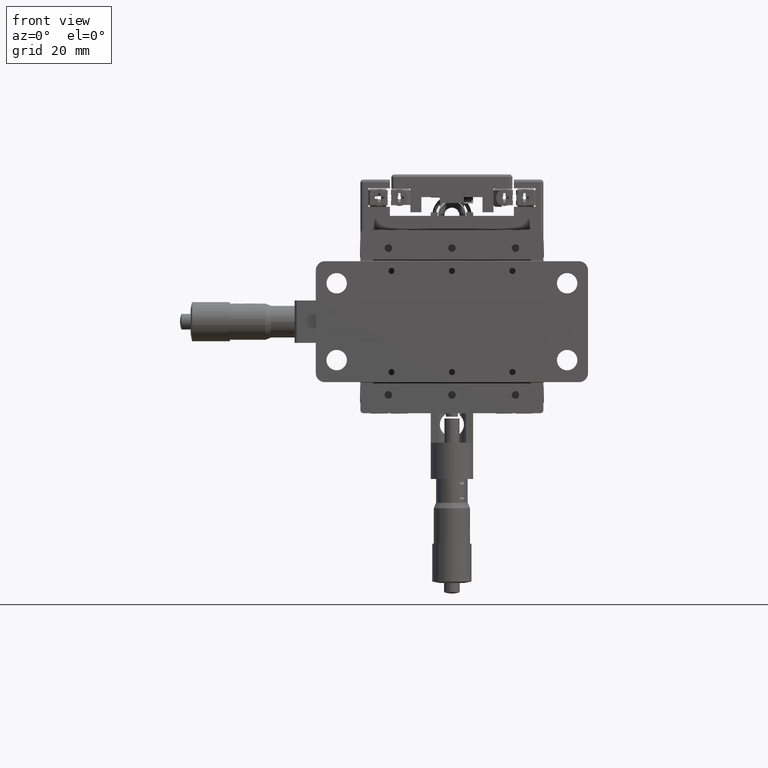
[diagram: clean part render]
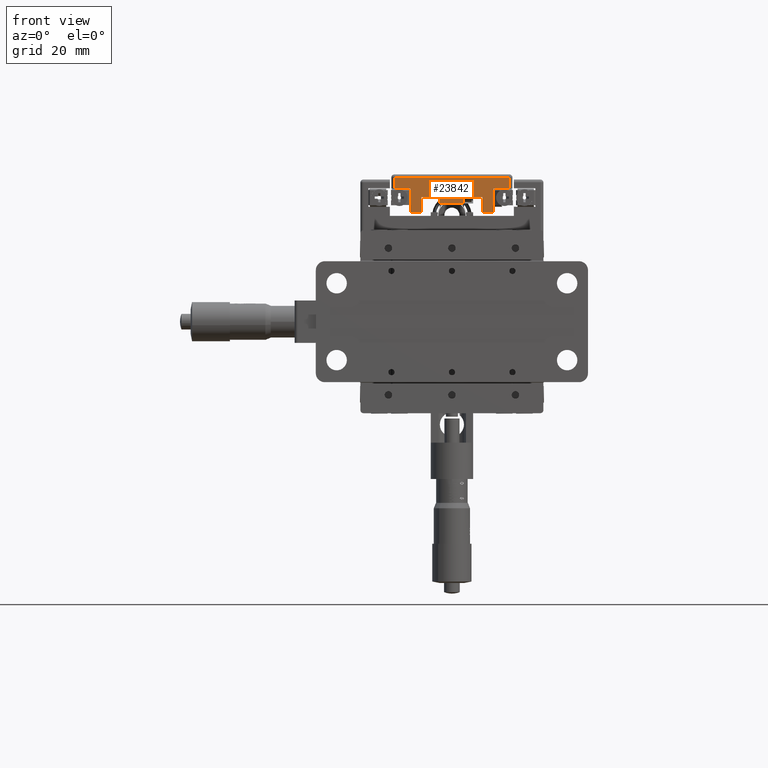
[diagram: same view with one face highlighted and labeled with its STEP entity id]
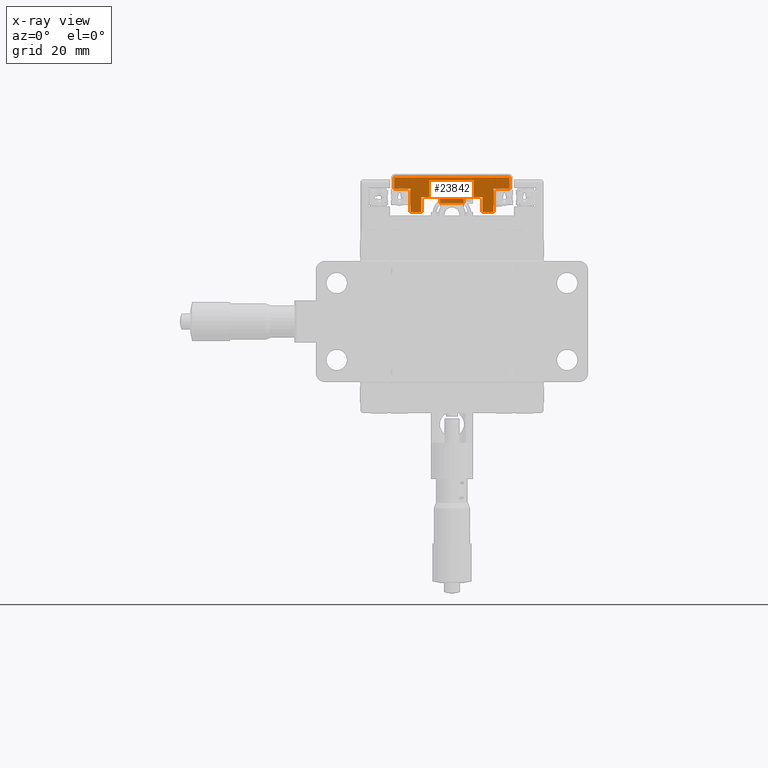
[diagram: x-ray of the same camera — body ghosted, the highlighted face saturated]
A machine part, front view. The second image highlights one B-rep face of the part: STEP entity #23842.
The next image is the same camera in x-ray: the body ghosted, the highlighted face saturated — about 0% of this face is hidden behind the body in this view.
In plain terms, the highlighted planar face has unit normal (-0, 1, -0).
Its self-contained STEP definition (entity closure, byte-faithful):
#304 = ORIENTED_EDGE ( 'NONE', *, *, #8910, .T. ) ;
#3503 = VERTEX_POINT ( 'NONE', #59172 ) ;
#3655 = EDGE_CURVE ( 'NONE', #60908, #56716, #82521, .T. ) ;
#4501 = CARTESIAN_POINT ( 'NONE',  ( -13.74999999999966100, 25.04999999999874700, 36.20000000000024400 ) ) ;
#4627 = CARTESIAN_POINT ( 'NONE',  ( -18.99999999999954200, 25.04999999999875400, 47.70000000000028700 ) ) ;
#4888 = CARTESIAN_POINT ( 'NONE',  ( -3.899999999999576300, 25.04999999999875400, 39.20000000000007400 ) ) ;
#5463 = DIRECTION ( 'NONE',  ( -1.000000000000000000, -3.783065374157278600E-018, 1.743811766388004100E-014 ) ) ;
#5639 = DIRECTION ( 'NONE',  ( 1.580125038398398000E-014, 3.453685575127654400E-016, 1.000000000000000000 ) ) ;
#5940 = CARTESIAN_POINT ( 'NONE',  ( 13.75000000000046000, 25.04999999999875400, 43.99999999999975800 ) ) ;
#5964 = DIRECTION ( 'NONE',  ( -1.743811766388004100E-014, -3.453685575127654400E-016, -1.000000000000000000 ) ) ;
#7181 = VERTEX_POINT ( 'NONE', #4501 ) ;
#7932 = EDGE_CURVE ( 'NONE', #14029, #47693, #84960, .T. ) ;
#8684 = CARTESIAN_POINT ( 'NONE',  ( 10.10000000000038700, 25.04999999999875400, 41.19999999999983200 ) ) ;
#8799 = VECTOR ( 'NONE', #25783, 1000.000000000000000 ) ;
#8910 = EDGE_CURVE ( 'NONE', #3503, #14029, #38335, .T. ) ;
#9645 = ORIENTED_EDGE ( 'NONE', *, *, #46413, .F. ) ;
#10597 = DIRECTION ( 'NONE',  ( -1.327478132153570400E-014, -3.453685575127654400E-016, -1.000000000000000000 ) ) ;
#10727 = CARTESIAN_POINT ( 'NONE',  ( -18.99999999999954200, 25.04999999999875400, 47.70000000000028700 ) ) ;
#11501 = VECTOR ( 'NONE', #10597, 1000.000000000000000 ) ;
#11594 = DIRECTION ( 'NONE',  ( 1.000000000000000000, 3.783065374157997400E-018, -1.535644949270787300E-014 ) ) ;
#11836 = EDGE_CURVE ( 'NONE', #20392, #49449, #39807, .T. ) ;
#12045 = ORIENTED_EDGE ( 'NONE', *, *, #7932, .T. ) ;
#12286 = EDGE_LOOP ( 'NONE', ( #45992, #65206, #44466, #81673, #53228, #9645, #84640, #52086, #64033, #78487, #69338, #68144, #78361, #40236, #304, #12045 ) ) ;
#12859 = VECTOR ( 'NONE', #63252, 1000.000000000000000 ) ;
#12892 = DIRECTION ( 'NONE',  ( -1.000000000000000000, -3.783065374157902600E-018, 1.563400524886416200E-014 ) ) ;
#14029 = VERTEX_POINT ( 'NONE', #47672 ) ;
#14968 = LINE ( 'NONE', #34413, #31159 ) ;
#15503 = VECTOR ( 'NONE', #12892, 1000.000000000000000 ) ;
#15627 = VECTOR ( 'NONE', #38258, 1000.000000000000000 ) ;
#15670 = DIRECTION ( 'NONE',  ( -1.743811766388004100E-014, -3.453685575127654400E-016, -1.000000000000000000 ) ) ;
#18249 = PLANE ( 'NONE',  #43898 ) ;
#18301 = DIRECTION ( 'NONE',  ( -1.000000000000000000, -3.783065374157321000E-018, 1.731500825590749900E-014 ) ) ;
#18424 = VERTEX_POINT ( 'NONE', #82718 ) ;
#18532 = VECTOR ( 'NONE', #85608, 1000.000000000000000 ) ;
#20367 = CARTESIAN_POINT ( 'NONE',  ( -18.99999999999954200, 25.04999999999875400, 47.70000000000028700 ) ) ;
#20392 = VERTEX_POINT ( 'NONE', #76294 ) ;
#20480 = DIRECTION ( 'NONE',  ( -1.000000000000000000, -3.783065374157278600E-018, 1.743811766388004100E-014 ) ) ;
#20676 = LINE ( 'NONE', #10727, #18532 ) ;
#20935 = VERTEX_POINT ( 'NONE', #22392 ) ;
#22392 = CARTESIAN_POINT ( 'NONE',  ( 13.75000000000033900, 25.04999999999874700, 36.19999999999976800 ) ) ;
#23842 = ADVANCED_FACE ( 'NONE', ( #32240 ), #18249, .F. ) ;
#25783 = DIRECTION ( 'NONE',  ( -1.535644949270787300E-014, -3.453685575127654400E-016, -1.000000000000000000 ) ) ;
#26019 = CARTESIAN_POINT ( 'NONE',  ( 3.900000000000359600, 25.04999999999875400, 39.19999999999993900 ) ) ;
#26662 = CARTESIAN_POINT ( 'NONE',  ( -10.09999999999961800, 25.04999999999874700, 36.20000000000014500 ) ) ;
#26863 = EDGE_CURVE ( 'NONE', #62402, #75694, #33784, .T. ) ;
#28175 = CARTESIAN_POINT ( 'NONE',  ( 19.00000000000051500, 25.04999999999875400, 47.69999999999966900 ) ) ;
#28547 = LINE ( 'NONE', #4888, #61020 ) ;
#29162 = EDGE_CURVE ( 'NONE', #49449, #62402, #20676, .T. ) ;
#29363 = LINE ( 'NONE', #53775, #47706 ) ;
#29894 = DIRECTION ( 'NONE',  ( 1.000000000000000000, 3.783065374158673800E-018, -1.339789072950824700E-014 ) ) ;
#31159 = VECTOR ( 'NONE', #41280, 1000.000000000000000 ) ;
#31333 = CARTESIAN_POINT ( 'NONE',  ( -10.09999999999955000, 25.04999999999875400, 41.20000000000013800 ) ) ;
#31609 = VECTOR ( 'NONE', #58635, 1000.000000000000000 ) ;
#31720 = VECTOR ( 'NONE', #20480, 1000.000000000000000 ) ;
#32240 = FACE_OUTER_BOUND ( 'NONE', #12286, .T. ) ;
#32380 = DIRECTION ( 'NONE',  ( 1.000000000000000000, 3.783065374157278600E-018, -1.743811766388004100E-014 ) ) ;
#32416 = LINE ( 'NONE', #88400, #67033 ) ;
#33419 = CARTESIAN_POINT ( 'NONE',  ( 3.900000000000397400, 25.04999999999875400, 41.19999999999993900 ) ) ;
#33784 = LINE ( 'NONE', #37736, #31609 ) ;
#34413 = CARTESIAN_POINT ( 'NONE',  ( -19.99999999999955200, 25.04999999999875400, 44.00000000000029100 ) ) ;
#35486 = EDGE_CURVE ( 'NONE', #64646, #75694, #14968, .T. ) ;
#37736 = CARTESIAN_POINT ( 'NONE',  ( -18.99999999999955200, 25.04999999999875400, 44.00000000000028400 ) ) ;
#37826 = CARTESIAN_POINT ( 'NONE',  ( 3.900000000000397400, 25.04999999999875400, 41.19999999999993900 ) ) ;
#37907 = EDGE_CURVE ( 'NONE', #20935, #66125, #50062, .T. ) ;
#38258 = DIRECTION ( 'NONE',  ( -1.327478132153570400E-014, -3.453685575127654400E-016, -1.000000000000000000 ) ) ;
#38335 = LINE ( 'NONE', #85164, #73026 ) ;
#39807 = LINE ( 'NONE', #28175, #12859 ) ;
#40236 = ORIENTED_EDGE ( 'NONE', *, *, #47278, .F. ) ;
#41241 = EDGE_CURVE ( 'NONE', #47693, #56716, #28547, .T. ) ;
#41280 = DIRECTION ( 'NONE',  ( -1.000000000000000000, -3.783065374157997400E-018, 1.535644949270787300E-014 ) ) ;
#41845 = CARTESIAN_POINT ( 'NONE',  ( -13.74999999999966100, 25.04999999999874700, 36.20000000000024400 ) ) ;
#43898 = AXIS2_PLACEMENT_3D ( 'NONE', #4627, #52924, #11594 ) ;
#44466 = ORIENTED_EDGE ( 'NONE', *, *, #56267, .F. ) ;
#45287 = VECTOR ( 'NONE', #18301, 1000.000000000000000 ) ;
#45470 = LINE ( 'NONE', #67211, #8799 ) ;
#45992 = ORIENTED_EDGE ( 'NONE', *, *, #41241, .T. ) ;
#46413 = EDGE_CURVE ( 'NONE', #18424, #20935, #45470, .T. ) ;
#47278 = EDGE_CURVE ( 'NONE', #3503, #74620, #89085, .T. ) ;
#47672 = CARTESIAN_POINT ( 'NONE',  ( -3.899999999999555400, 25.04999999999875400, 41.20000000000005300 ) ) ;
#47693 = VERTEX_POINT ( 'NONE', #65712 ) ;
#47706 = VECTOR ( 'NONE', #5463, 1000.000000000000000 ) ;
#48351 = EDGE_CURVE ( 'NONE', #74620, #7181, #29363, .T. ) ;
#48915 = EDGE_CURVE ( 'NONE', #7181, #64646, #32416, .T. ) ;
#49449 = VERTEX_POINT ( 'NONE', #74746 ) ;
#50062 = LINE ( 'NONE', #41845, #31720 ) ;
#51915 = CARTESIAN_POINT ( 'NONE',  ( -3.899999999999562000, 25.04999999999875400, 41.20000000000005300 ) ) ;
#52086 = ORIENTED_EDGE ( 'NONE', *, *, #11836, .T. ) ;
#52924 = DIRECTION ( 'NONE',  ( -3.783065374161595800E-018, 1.000000000000000000, -2.343462550502514100E-016 ) ) ;
#53228 = ORIENTED_EDGE ( 'NONE', *, *, #37907, .F. ) ;
#53480 = EDGE_CURVE ( 'NONE', #20392, #18424, #70662, .T. ) ;
#53775 = CARTESIAN_POINT ( 'NONE',  ( -13.74999999999966100, 25.04999999999874700, 36.20000000000024400 ) ) ;
#56267 = EDGE_CURVE ( 'NONE', #79788, #60908, #63722, .T. ) ;
#56582 = CARTESIAN_POINT ( 'NONE',  ( 10.10000000000039200, 25.04999999999875400, 41.19999999999983200 ) ) ;
#56716 = VERTEX_POINT ( 'NONE', #26019 ) ;
#58635 = DIRECTION ( 'NONE',  ( -3.166500742600624700E-015, -3.453685575127653900E-016, -1.000000000000000000 ) ) ;
#59172 = CARTESIAN_POINT ( 'NONE',  ( -10.09999999999955000, 25.04999999999875400, 41.20000000000013800 ) ) ;
#59682 = CARTESIAN_POINT ( 'NONE',  ( 10.10000000000038700, 25.04999999999875400, 41.19999999999983200 ) ) ;
#60908 = VERTEX_POINT ( 'NONE', #37826 ) ;
#61020 = VECTOR ( 'NONE', #32380, 1000.000000000000000 ) ;
#62402 = VERTEX_POINT ( 'NONE', #20367 ) ;
#63252 = DIRECTION ( 'NONE',  ( 1.066800766574351900E-014, 3.453685575127654400E-016, 1.000000000000000000 ) ) ;
#63722 = LINE ( 'NONE', #59682, #45287 ) ;
#64033 = ORIENTED_EDGE ( 'NONE', *, *, #29162, .T. ) ;
#64171 = VECTOR ( 'NONE', #5964, 1000.000000000000000 ) ;
#64646 = VERTEX_POINT ( 'NONE', #78799 ) ;
#65206 = ORIENTED_EDGE ( 'NONE', *, *, #3655, .F. ) ;
#65712 = CARTESIAN_POINT ( 'NONE',  ( -3.899999999999588200, 25.04999999999875400, 39.20000000000007400 ) ) ;
#66125 = VERTEX_POINT ( 'NONE', #73603 ) ;
#67033 = VECTOR ( 'NONE', #5639, 1000.000000000000000 ) ;
#67211 = CARTESIAN_POINT ( 'NONE',  ( 13.75000000000033900, 25.04999999999874700, 36.19999999999976800 ) ) ;
#68144 = ORIENTED_EDGE ( 'NONE', *, *, #48915, .F. ) ;
#69338 = ORIENTED_EDGE ( 'NONE', *, *, #35486, .F. ) ;
#70662 = LINE ( 'NONE', #5940, #15503 ) ;
#71114 = VECTOR ( 'NONE', #15670, 1000.000000000000000 ) ;
#73026 = VECTOR ( 'NONE', #29894, 1000.000000000000000 ) ;
#73603 = CARTESIAN_POINT ( 'NONE',  ( 10.10000000000029800, 25.04999999999874700, 36.19999999999983200 ) ) ;
#74620 = VERTEX_POINT ( 'NONE', #26662 ) ;
#74746 = CARTESIAN_POINT ( 'NONE',  ( 19.00000000000051500, 25.04999999999875400, 47.69999999999967600 ) ) ;
#75694 = VERTEX_POINT ( 'NONE', #81540 ) ;
#76294 = CARTESIAN_POINT ( 'NONE',  ( 19.00000000000047600, 25.04999999999875400, 43.99999999999968700 ) ) ;
#78361 = ORIENTED_EDGE ( 'NONE', *, *, #48351, .F. ) ;
#78487 = ORIENTED_EDGE ( 'NONE', *, *, #26863, .T. ) ;
#78799 = CARTESIAN_POINT ( 'NONE',  ( -13.74999999999953600, 25.04999999999875400, 44.00000000000019200 ) ) ;
#79788 = VERTEX_POINT ( 'NONE', #56582 ) ;
#81540 = CARTESIAN_POINT ( 'NONE',  ( -18.99999999999955200, 25.04999999999875400, 44.00000000000027000 ) ) ;
#81673 = ORIENTED_EDGE ( 'NONE', *, *, #83250, .T. ) ;
#82521 = LINE ( 'NONE', #33419, #64171 ) ;
#82718 = CARTESIAN_POINT ( 'NONE',  ( 13.75000000000046000, 25.04999999999875400, 43.99999999999975800 ) ) ;
#83250 = EDGE_CURVE ( 'NONE', #79788, #66125, #89439, .T. ) ;
#84640 = ORIENTED_EDGE ( 'NONE', *, *, #53480, .F. ) ;
#84960 = LINE ( 'NONE', #51915, #11501 ) ;
#85164 = CARTESIAN_POINT ( 'NONE',  ( -10.09999999999955000, 25.04999999999875400, 41.20000000000013800 ) ) ;
#85608 = DIRECTION ( 'NONE',  ( -1.000000000000000000, -3.783065374157739300E-018, 1.610438921456060900E-014 ) ) ;
#88400 = CARTESIAN_POINT ( 'NONE',  ( -13.74999999999966100, 25.04999999999874700, 36.20000000000024400 ) ) ;
#89085 = LINE ( 'NONE', #31333, #15627 ) ;
#89439 = LINE ( 'NONE', #8684, #71114 ) ;